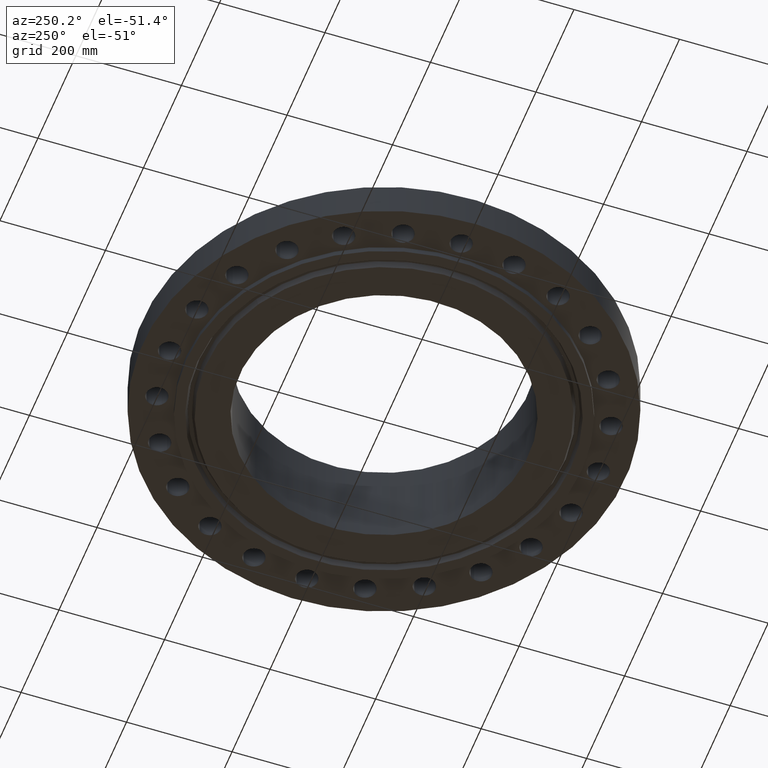
[diagram: clean part render]
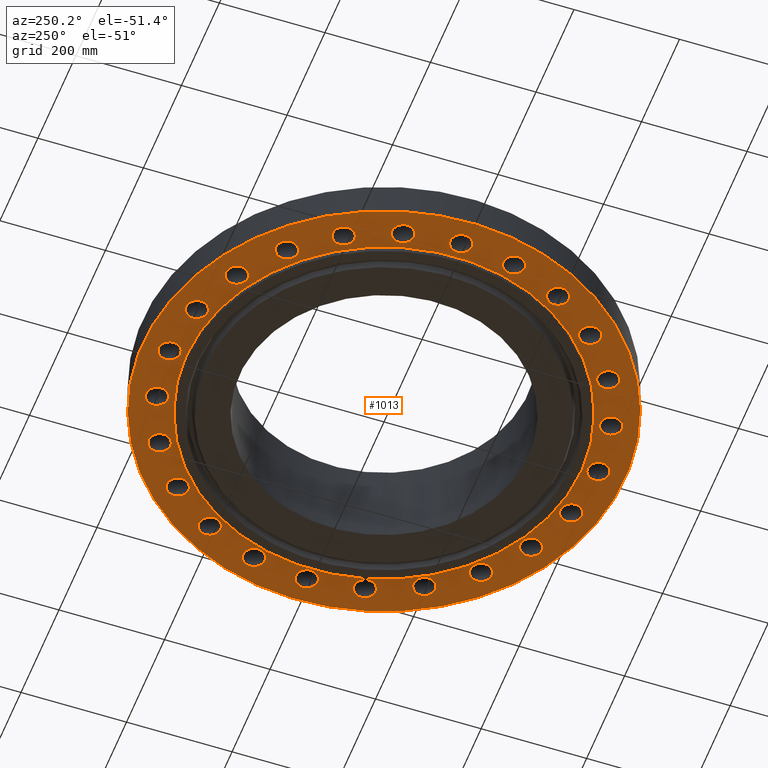
[diagram: same view with one face highlighted and labeled with its STEP entity id]
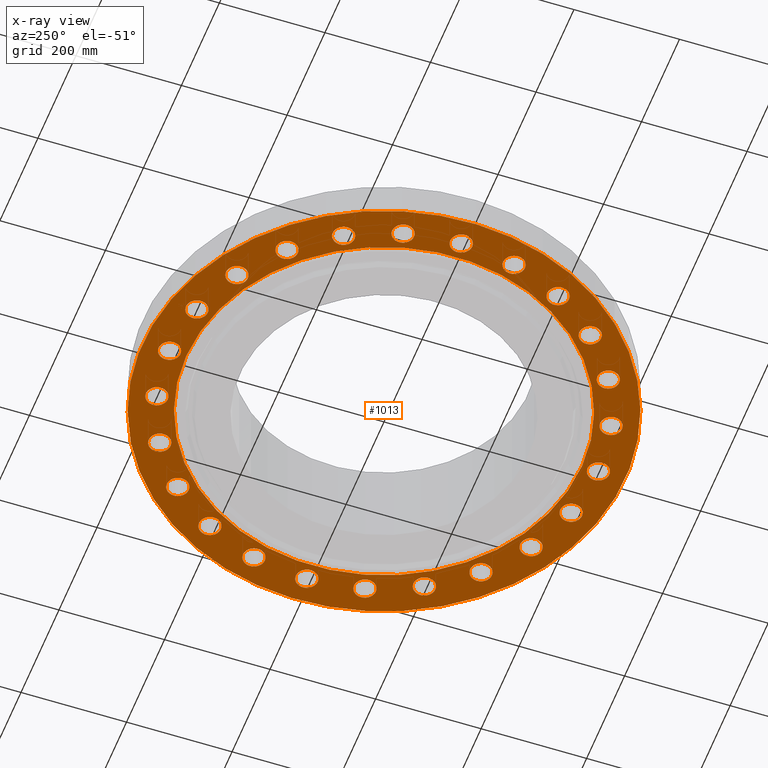
[diagram: x-ray of the same camera — body ghosted, the highlighted face saturated]
A machine part, auxiliary view. The second image highlights one B-rep face of the part: STEP entity #1013.
The next image is the same camera in x-ray: the body ghosted, the highlighted face saturated — about 0% of this face is hidden behind the body in this view.
In plain terms, the highlighted planar face has unit normal (0, 0, -1).
Its self-contained STEP definition (entity closure, byte-faithful):
#51=AXIS2_PLACEMENT_3D('Circle Axis2P3D',#49,#50,$) ;
#85=AXIS2_PLACEMENT_3D('Circle Axis2P3D',#83,#84,$) ;
#114=AXIS2_PLACEMENT_3D('Circle Axis2P3D',#112,#113,$) ;
#149=AXIS2_PLACEMENT_3D('Circle Axis2P3D',#147,#148,$) ;
#548=AXIS2_PLACEMENT_3D('Circle Axis2P3D',#546,#547,$) ;
#572=AXIS2_PLACEMENT_3D('Circle Axis2P3D',#570,#571,$) ;
#585=AXIS2_PLACEMENT_3D('Plane Axis2P3D',#582,#583,#584) ;
#601=AXIS2_PLACEMENT_3D('Circle Axis2P3D',#599,#600,$) ;
#610=AXIS2_PLACEMENT_3D('Circle Axis2P3D',#608,#609,$) ;
#619=AXIS2_PLACEMENT_3D('Circle Axis2P3D',#617,#618,$) ;
#628=AXIS2_PLACEMENT_3D('Circle Axis2P3D',#626,#627,$) ;
#637=AXIS2_PLACEMENT_3D('Circle Axis2P3D',#635,#636,$) ;
#646=AXIS2_PLACEMENT_3D('Circle Axis2P3D',#644,#645,$) ;
#655=AXIS2_PLACEMENT_3D('Circle Axis2P3D',#653,#654,$) ;
#664=AXIS2_PLACEMENT_3D('Circle Axis2P3D',#662,#663,$) ;
#673=AXIS2_PLACEMENT_3D('Circle Axis2P3D',#671,#672,$) ;
#682=AXIS2_PLACEMENT_3D('Circle Axis2P3D',#680,#681,$) ;
#691=AXIS2_PLACEMENT_3D('Circle Axis2P3D',#689,#690,$) ;
#700=AXIS2_PLACEMENT_3D('Circle Axis2P3D',#698,#699,$) ;
#709=AXIS2_PLACEMENT_3D('Circle Axis2P3D',#707,#708,$) ;
#718=AXIS2_PLACEMENT_3D('Circle Axis2P3D',#716,#717,$) ;
#727=AXIS2_PLACEMENT_3D('Circle Axis2P3D',#725,#726,$) ;
#736=AXIS2_PLACEMENT_3D('Circle Axis2P3D',#734,#735,$) ;
#745=AXIS2_PLACEMENT_3D('Circle Axis2P3D',#743,#744,$) ;
#754=AXIS2_PLACEMENT_3D('Circle Axis2P3D',#752,#753,$) ;
#763=AXIS2_PLACEMENT_3D('Circle Axis2P3D',#761,#762,$) ;
#772=AXIS2_PLACEMENT_3D('Circle Axis2P3D',#770,#771,$) ;
#781=AXIS2_PLACEMENT_3D('Circle Axis2P3D',#779,#780,$) ;
#790=AXIS2_PLACEMENT_3D('Circle Axis2P3D',#788,#789,$) ;
#799=AXIS2_PLACEMENT_3D('Circle Axis2P3D',#797,#798,$) ;
#808=AXIS2_PLACEMENT_3D('Circle Axis2P3D',#806,#807,$) ;
#817=AXIS2_PLACEMENT_3D('Circle Axis2P3D',#815,#816,$) ;
#826=AXIS2_PLACEMENT_3D('Circle Axis2P3D',#824,#825,$) ;
#835=AXIS2_PLACEMENT_3D('Circle Axis2P3D',#833,#834,$) ;
#844=AXIS2_PLACEMENT_3D('Circle Axis2P3D',#842,#843,$) ;
#853=AXIS2_PLACEMENT_3D('Circle Axis2P3D',#851,#852,$) ;
#862=AXIS2_PLACEMENT_3D('Circle Axis2P3D',#860,#861,$) ;
#871=AXIS2_PLACEMENT_3D('Circle Axis2P3D',#869,#870,$) ;
#880=AXIS2_PLACEMENT_3D('Circle Axis2P3D',#878,#879,$) ;
#889=AXIS2_PLACEMENT_3D('Circle Axis2P3D',#887,#888,$) ;
#898=AXIS2_PLACEMENT_3D('Circle Axis2P3D',#896,#897,$) ;
#907=AXIS2_PLACEMENT_3D('Circle Axis2P3D',#905,#906,$) ;
#916=AXIS2_PLACEMENT_3D('Circle Axis2P3D',#914,#915,$) ;
#925=AXIS2_PLACEMENT_3D('Circle Axis2P3D',#923,#924,$) ;
#934=AXIS2_PLACEMENT_3D('Circle Axis2P3D',#932,#933,$) ;
#943=AXIS2_PLACEMENT_3D('Circle Axis2P3D',#941,#942,$) ;
#952=AXIS2_PLACEMENT_3D('Circle Axis2P3D',#950,#951,$) ;
#961=AXIS2_PLACEMENT_3D('Circle Axis2P3D',#959,#960,$) ;
#970=AXIS2_PLACEMENT_3D('Circle Axis2P3D',#968,#969,$) ;
#979=AXIS2_PLACEMENT_3D('Circle Axis2P3D',#977,#978,$) ;
#988=AXIS2_PLACEMENT_3D('Circle Axis2P3D',#986,#987,$) ;
#997=AXIS2_PLACEMENT_3D('Circle Axis2P3D',#995,#996,$) ;
#1006=AXIS2_PLACEMENT_3D('Circle Axis2P3D',#1004,#1005,$) ;
#44=CARTESIAN_POINT('Vertex',(-0.715229787944,16.390731814,0.)) ;
#49=CARTESIAN_POINT('Axis2P3D Location',(0.,16.0000000001,0.)) ;
#53=CARTESIAN_POINT('Vertex',(0.715229787944,15.6092681861,0.)) ;
#83=CARTESIAN_POINT('Axis2P3D Location',(0.,16.0000000001,0.)) ;
#112=CARTESIAN_POINT('Axis2P3D Location',(0.,0.,2.23792987641E-015)) ;
#116=CARTESIAN_POINT('Vertex',(-8.62965969491,-15.7964861141,2.23792987641E-015)) ;
#118=CARTESIAN_POINT('Vertex',(8.62965969491,15.7964861141,2.23792987641E-015)) ;
#147=CARTESIAN_POINT('Axis2P3D Location',(0.,0.,2.23792987641E-015)) ;
#543=CARTESIAN_POINT('Vertex',(-7.07152669444,-12.9443427879,1.67844740731E-015)) ;
#546=CARTESIAN_POINT('Axis2P3D Location',(0.,0.,1.67844740731E-015)) ;
#550=CARTESIAN_POINT('Vertex',(7.07152669444,12.9443427879,1.67844740731E-015)) ;
#570=CARTESIAN_POINT('Axis2P3D Location',(0.,0.,1.67844740731E-015)) ;
#582=CARTESIAN_POINT('Axis2P3D Location',(0.,14.7500000001,0.)) ;
#599=CARTESIAN_POINT('Axis2P3D Location',(4.14110472166,15.4548132207,0.)) ;
#603=CARTESIAN_POINT('Vertex',(3.55137463273,16.0173462617,0.)) ;
#605=CARTESIAN_POINT('Vertex',(4.73083481058,14.8922801797,0.)) ;
#608=CARTESIAN_POINT('Axis2P3D Location',(4.14110472166,15.4548132207,0.)) ;
#617=CARTESIAN_POINT('Axis2P3D Location',(8.00000000003,13.8564064606,0.)) ;
#621=CARTESIAN_POINT('Vertex',(7.57595874111,14.5524050315,0.)) ;
#623=CARTESIAN_POINT('Vertex',(8.42404125895,13.1604078897,0.)) ;
#626=CARTESIAN_POINT('Axis2P3D Location',(8.00000000003,13.8564064606,0.)) ;
#635=CARTESIAN_POINT('Axis2P3D Location',(11.313708499,11.313708499,0.)) ;
#639=CARTESIAN_POINT('Vertex',(11.0842537811,12.0957414475,0.)) ;
#641=CARTESIAN_POINT('Vertex',(11.5431632169,10.5316755506,0.)) ;
#644=CARTESIAN_POINT('Axis2P3D Location',(11.313708499,11.313708499,0.)) ;
#653=CARTESIAN_POINT('Axis2P3D Location',(13.8564064606,8.00000000003,0.)) ;
#657=CARTESIAN_POINT('Vertex',(13.8371752436,8.81477307292,0.)) ;
#659=CARTESIAN_POINT('Vertex',(13.8756376776,7.18522692715,0.)) ;
#662=CARTESIAN_POINT('Axis2P3D Location',(13.8564064606,8.00000000003,0.)) ;
#671=CARTESIAN_POINT('Axis2P3D Location',(15.4548132207,4.14110472166,0.)) ;
#675=CARTESIAN_POINT('Vertex',(15.6471160802,4.93309248054,0.)) ;
#677=CARTESIAN_POINT('Vertex',(15.2625103612,3.34911696277,0.)) ;
#680=CARTESIAN_POINT('Axis2P3D Location',(15.4548132207,4.14110472166,0.)) ;
#689=CARTESIAN_POINT('Axis2P3D Location',(16.0000000001,2.23792987641E-015,0.)) ;
#693=CARTESIAN_POINT('Vertex',(16.390731814,0.715229787944,0.)) ;
#695=CARTESIAN_POINT('Vertex',(15.6092681861,-0.715229787944,0.)) ;
#698=CARTESIAN_POINT('Axis2P3D Location',(16.0000000001,2.23792987641E-015,0.)) ;
#707=CARTESIAN_POINT('Axis2P3D Location',(15.4548132207,-4.14110472166,0.)) ;
#711=CARTESIAN_POINT('Vertex',(16.0173462617,-3.55137463273,0.)) ;
#713=CARTESIAN_POINT('Vertex',(14.8922801797,-4.73083481058,-1.1189649382E-015)) ;
#716=CARTESIAN_POINT('Axis2P3D Location',(15.4548132207,-4.14110472166,0.)) ;
#725=CARTESIAN_POINT('Axis2P3D Location',(13.8564064606,-8.00000000003,0.)) ;
#729=CARTESIAN_POINT('Vertex',(14.5524050315,-7.57595874111,0.)) ;
#731=CARTESIAN_POINT('Vertex',(13.1604078897,-8.42404125895,-2.23792987641E-015)) ;
#734=CARTESIAN_POINT('Axis2P3D Location',(13.8564064606,-8.00000000003,0.)) ;
#743=CARTESIAN_POINT('Axis2P3D Location',(11.313708499,-11.313708499,0.)) ;
#747=CARTESIAN_POINT('Vertex',(12.0957414475,-11.0842537811,0.)) ;
#749=CARTESIAN_POINT('Vertex',(10.5316755506,-11.5431632169,0.)) ;
#752=CARTESIAN_POINT('Axis2P3D Location',(11.313708499,-11.313708499,0.)) ;
#761=CARTESIAN_POINT('Axis2P3D Location',(8.00000000003,-13.8564064606,0.)) ;
#765=CARTESIAN_POINT('Vertex',(8.81477307292,-13.8371752436,0.)) ;
#767=CARTESIAN_POINT('Vertex',(7.18522692715,-13.8756376776,0.)) ;
#770=CARTESIAN_POINT('Axis2P3D Location',(8.00000000003,-13.8564064606,0.)) ;
#779=CARTESIAN_POINT('Axis2P3D Location',(4.14110472166,-15.4548132207,0.)) ;
#783=CARTESIAN_POINT('Vertex',(4.93309248054,-15.6471160802,0.)) ;
#785=CARTESIAN_POINT('Vertex',(3.34911696277,-15.2625103612,0.)) ;
#788=CARTESIAN_POINT('Axis2P3D Location',(4.14110472166,-15.4548132207,0.)) ;
#797=CARTESIAN_POINT('Axis2P3D Location',(2.13302691345E-015,-16.0000000001,0.)) ;
#801=CARTESIAN_POINT('Vertex',(0.715229787944,-16.390731814,0.)) ;
#803=CARTESIAN_POINT('Vertex',(-0.715229787944,-15.6092681861,0.)) ;
#806=CARTESIAN_POINT('Axis2P3D Location',(1.78335037026E-015,-16.0000000001,0.)) ;
#815=CARTESIAN_POINT('Axis2P3D Location',(-4.14110472166,-15.4548132207,0.)) ;
#819=CARTESIAN_POINT('Vertex',(-3.55137463273,-16.0173462617,0.)) ;
#821=CARTESIAN_POINT('Vertex',(-4.73083481058,-14.8922801797,0.)) ;
#824=CARTESIAN_POINT('Axis2P3D Location',(-4.14110472166,-15.4548132207,0.)) ;
#833=CARTESIAN_POINT('Axis2P3D Location',(-8.00000000003,-13.8564064606,0.)) ;
#837=CARTESIAN_POINT('Vertex',(-7.57595874111,-14.5524050315,0.)) ;
#839=CARTESIAN_POINT('Vertex',(-8.42404125895,-13.1604078897,0.)) ;
#842=CARTESIAN_POINT('Axis2P3D Location',(-8.00000000003,-13.8564064606,0.)) ;
#851=CARTESIAN_POINT('Axis2P3D Location',(-11.313708499,-11.313708499,0.)) ;
#855=CARTESIAN_POINT('Vertex',(-11.0842537811,-12.0957414475,0.)) ;
#857=CARTESIAN_POINT('Vertex',(-11.5431632169,-10.5316755506,0.)) ;
#860=CARTESIAN_POINT('Axis2P3D Location',(-11.313708499,-11.313708499,0.)) ;
#869=CARTESIAN_POINT('Axis2P3D Location',(-13.8564064606,-8.00000000003,0.)) ;
#873=CARTESIAN_POINT('Vertex',(-13.8371752436,-8.81477307292,0.)) ;
#875=CARTESIAN_POINT('Vertex',(-13.8756376776,-7.18522692715,0.)) ;
#878=CARTESIAN_POINT('Axis2P3D Location',(-13.8564064606,-8.00000000003,0.)) ;
#887=CARTESIAN_POINT('Axis2P3D Location',(-15.4548132207,-4.14110472166,0.)) ;
#891=CARTESIAN_POINT('Vertex',(-15.6471160802,-4.93309248054,0.)) ;
#893=CARTESIAN_POINT('Vertex',(-15.2625103612,-3.34911696277,0.)) ;
#896=CARTESIAN_POINT('Axis2P3D Location',(-15.4548132207,-4.14110472166,0.)) ;
#905=CARTESIAN_POINT('Axis2P3D Location',(-16.0000000001,-2.23792987641E-015,0.)) ;
#909=CARTESIAN_POINT('Vertex',(-16.390731814,-0.715229787944,0.)) ;
#911=CARTESIAN_POINT('Vertex',(-15.6092681861,0.715229787944,0.)) ;
#914=CARTESIAN_POINT('Axis2P3D Location',(-16.0000000001,0.,0.)) ;
#923=CARTESIAN_POINT('Axis2P3D Location',(-15.4548132207,4.14110472166,0.)) ;
#927=CARTESIAN_POINT('Vertex',(-16.0173462617,3.55137463273,0.)) ;
#929=CARTESIAN_POINT('Vertex',(-14.8922801797,4.73083481058,0.)) ;
#932=CARTESIAN_POINT('Axis2P3D Location',(-15.4548132207,4.14110472166,0.)) ;
#941=CARTESIAN_POINT('Axis2P3D Location',(-13.8564064606,8.00000000003,0.)) ;
#945=CARTESIAN_POINT('Vertex',(-14.5524050315,7.57595874111,0.)) ;
#947=CARTESIAN_POINT('Vertex',(-13.1604078897,8.42404125895,0.)) ;
#950=CARTESIAN_POINT('Axis2P3D Location',(-13.8564064606,8.00000000003,0.)) ;
#959=CARTESIAN_POINT('Axis2P3D Location',(-11.313708499,11.313708499,0.)) ;
#963=CARTESIAN_POINT('Vertex',(-12.0957414475,11.0842537811,0.)) ;
#965=CARTESIAN_POINT('Vertex',(-10.5316755506,11.5431632169,0.)) ;
#968=CARTESIAN_POINT('Axis2P3D Location',(-11.313708499,11.313708499,0.)) ;
#977=CARTESIAN_POINT('Axis2P3D Location',(-8.00000000003,13.8564064606,0.)) ;
#981=CARTESIAN_POINT('Vertex',(-8.81477307292,13.8371752436,0.)) ;
#983=CARTESIAN_POINT('Vertex',(-7.18522692715,13.8756376776,0.)) ;
#986=CARTESIAN_POINT('Axis2P3D Location',(-8.00000000003,13.8564064606,0.)) ;
#995=CARTESIAN_POINT('Axis2P3D Location',(-4.14110472166,15.4548132207,0.)) ;
#999=CARTESIAN_POINT('Vertex',(-4.93309248054,15.6471160802,0.)) ;
#1001=CARTESIAN_POINT('Vertex',(-3.34911696277,15.2625103612,0.)) ;
#1004=CARTESIAN_POINT('Axis2P3D Location',(-4.14110472166,15.4548132207,0.)) ;
#50=DIRECTION('Axis2P3D Direction',(0.,-0.,-0.0393700787402)) ;
#84=DIRECTION('Axis2P3D Direction',(0.,-0.,-0.0393700787402)) ;
#113=DIRECTION('Axis2P3D Direction',(0.,0.,-0.0393700787402)) ;
#148=DIRECTION('Axis2P3D Direction',(0.,0.,-0.0393700787402)) ;
#547=DIRECTION('Axis2P3D Direction',(0.,0.,-0.0393700787402)) ;
#571=DIRECTION('Axis2P3D Direction',(0.,0.,-0.0393700787402)) ;
#583=DIRECTION('Axis2P3D Direction',(0.,0.,-0.0393700787402)) ;
#584=DIRECTION('Axis2P3D XDirection',(0.0393700787402,0.,0.)) ;
#600=DIRECTION('Axis2P3D Direction',(0.,0.,-0.0393700787402)) ;
#609=DIRECTION('Axis2P3D Direction',(0.,0.,-0.0393700787402)) ;
#618=DIRECTION('Axis2P3D Direction',(0.,0.,-0.0393700787402)) ;
#627=DIRECTION('Axis2P3D Direction',(0.,0.,-0.0393700787402)) ;
#636=DIRECTION('Axis2P3D Direction',(0.,0.,-0.0393700787402)) ;
#645=DIRECTION('Axis2P3D Direction',(0.,0.,-0.0393700787402)) ;
#654=DIRECTION('Axis2P3D Direction',(0.,0.,-0.0393700787402)) ;
#663=DIRECTION('Axis2P3D Direction',(0.,0.,-0.0393700787402)) ;
#672=DIRECTION('Axis2P3D Direction',(0.,0.,-0.0393700787402)) ;
#681=DIRECTION('Axis2P3D Direction',(0.,0.,-0.0393700787402)) ;
#690=DIRECTION('Axis2P3D Direction',(0.,0.,-0.0393700787402)) ;
#699=DIRECTION('Axis2P3D Direction',(0.,0.,-0.0393700787402)) ;
#708=DIRECTION('Axis2P3D Direction',(0.,0.,-0.0393700787402)) ;
#717=DIRECTION('Axis2P3D Direction',(0.,0.,-0.0393700787402)) ;
#726=DIRECTION('Axis2P3D Direction',(0.,0.,-0.0393700787402)) ;
#735=DIRECTION('Axis2P3D Direction',(0.,0.,-0.0393700787402)) ;
#744=DIRECTION('Axis2P3D Direction',(0.,0.,-0.0393700787402)) ;
#753=DIRECTION('Axis2P3D Direction',(0.,0.,-0.0393700787402)) ;
#762=DIRECTION('Axis2P3D Direction',(0.,0.,-0.0393700787402)) ;
#771=DIRECTION('Axis2P3D Direction',(0.,0.,-0.0393700787402)) ;
#780=DIRECTION('Axis2P3D Direction',(0.,0.,-0.0393700787402)) ;
#789=DIRECTION('Axis2P3D Direction',(0.,0.,-0.0393700787402)) ;
#798=DIRECTION('Axis2P3D Direction',(0.,0.,-0.0393700787402)) ;
#807=DIRECTION('Axis2P3D Direction',(0.,0.,-0.0393700787402)) ;
#816=DIRECTION('Axis2P3D Direction',(0.,0.,-0.0393700787402)) ;
#825=DIRECTION('Axis2P3D Direction',(0.,0.,-0.0393700787402)) ;
#834=DIRECTION('Axis2P3D Direction',(0.,0.,-0.0393700787402)) ;
#843=DIRECTION('Axis2P3D Direction',(0.,0.,-0.0393700787402)) ;
#852=DIRECTION('Axis2P3D Direction',(0.,0.,-0.0393700787402)) ;
#861=DIRECTION('Axis2P3D Direction',(0.,0.,-0.0393700787402)) ;
#870=DIRECTION('Axis2P3D Direction',(0.,0.,-0.0393700787402)) ;
#879=DIRECTION('Axis2P3D Direction',(0.,0.,-0.0393700787402)) ;
#888=DIRECTION('Axis2P3D Direction',(0.,0.,-0.0393700787402)) ;
#897=DIRECTION('Axis2P3D Direction',(0.,0.,-0.0393700787402)) ;
#906=DIRECTION('Axis2P3D Direction',(0.,0.,-0.0393700787402)) ;
#915=DIRECTION('Axis2P3D Direction',(0.,0.,-0.0393700787402)) ;
#924=DIRECTION('Axis2P3D Direction',(0.,0.,-0.0393700787402)) ;
#933=DIRECTION('Axis2P3D Direction',(0.,0.,-0.0393700787402)) ;
#942=DIRECTION('Axis2P3D Direction',(0.,0.,-0.0393700787402)) ;
#951=DIRECTION('Axis2P3D Direction',(0.,0.,-0.0393700787402)) ;
#960=DIRECTION('Axis2P3D Direction',(0.,0.,-0.0393700787402)) ;
#969=DIRECTION('Axis2P3D Direction',(0.,0.,-0.0393700787402)) ;
#978=DIRECTION('Axis2P3D Direction',(0.,0.,-0.0393700787402)) ;
#987=DIRECTION('Axis2P3D Direction',(0.,0.,-0.0393700787402)) ;
#996=DIRECTION('Axis2P3D Direction',(0.,0.,-0.0393700787402)) ;
#1005=DIRECTION('Axis2P3D Direction',(0.,0.,-0.0393700787402)) ;
#588=ORIENTED_EDGE('',*,*,#120,.T.) ;
#589=ORIENTED_EDGE('',*,*,#151,.T.) ;
#592=ORIENTED_EDGE('',*,*,#87,.F.) ;
#593=ORIENTED_EDGE('',*,*,#55,.F.) ;
#596=ORIENTED_EDGE('',*,*,#574,.F.) ;
#597=ORIENTED_EDGE('',*,*,#552,.F.) ;
#614=ORIENTED_EDGE('',*,*,#607,.F.) ;
#615=ORIENTED_EDGE('',*,*,#612,.F.) ;
#632=ORIENTED_EDGE('',*,*,#625,.F.) ;
#633=ORIENTED_EDGE('',*,*,#630,.F.) ;
#650=ORIENTED_EDGE('',*,*,#643,.F.) ;
#651=ORIENTED_EDGE('',*,*,#648,.F.) ;
#668=ORIENTED_EDGE('',*,*,#661,.F.) ;
#669=ORIENTED_EDGE('',*,*,#666,.F.) ;
#686=ORIENTED_EDGE('',*,*,#679,.F.) ;
#687=ORIENTED_EDGE('',*,*,#684,.F.) ;
#704=ORIENTED_EDGE('',*,*,#697,.F.) ;
#705=ORIENTED_EDGE('',*,*,#702,.F.) ;
#722=ORIENTED_EDGE('',*,*,#715,.F.) ;
#723=ORIENTED_EDGE('',*,*,#720,.F.) ;
#740=ORIENTED_EDGE('',*,*,#733,.F.) ;
#741=ORIENTED_EDGE('',*,*,#738,.F.) ;
#758=ORIENTED_EDGE('',*,*,#751,.F.) ;
#759=ORIENTED_EDGE('',*,*,#756,.F.) ;
#776=ORIENTED_EDGE('',*,*,#769,.F.) ;
#777=ORIENTED_EDGE('',*,*,#774,.F.) ;
#794=ORIENTED_EDGE('',*,*,#787,.F.) ;
#795=ORIENTED_EDGE('',*,*,#792,.F.) ;
#812=ORIENTED_EDGE('',*,*,#805,.F.) ;
#813=ORIENTED_EDGE('',*,*,#810,.F.) ;
#830=ORIENTED_EDGE('',*,*,#823,.F.) ;
#831=ORIENTED_EDGE('',*,*,#828,.F.) ;
#848=ORIENTED_EDGE('',*,*,#841,.F.) ;
#849=ORIENTED_EDGE('',*,*,#846,.F.) ;
#866=ORIENTED_EDGE('',*,*,#859,.F.) ;
#867=ORIENTED_EDGE('',*,*,#864,.F.) ;
#884=ORIENTED_EDGE('',*,*,#877,.F.) ;
#885=ORIENTED_EDGE('',*,*,#882,.F.) ;
#902=ORIENTED_EDGE('',*,*,#895,.F.) ;
#903=ORIENTED_EDGE('',*,*,#900,.F.) ;
#920=ORIENTED_EDGE('',*,*,#913,.F.) ;
#921=ORIENTED_EDGE('',*,*,#918,.F.) ;
#938=ORIENTED_EDGE('',*,*,#931,.F.) ;
#939=ORIENTED_EDGE('',*,*,#936,.F.) ;
#956=ORIENTED_EDGE('',*,*,#949,.F.) ;
#957=ORIENTED_EDGE('',*,*,#954,.F.) ;
#974=ORIENTED_EDGE('',*,*,#967,.F.) ;
#975=ORIENTED_EDGE('',*,*,#972,.F.) ;
#992=ORIENTED_EDGE('',*,*,#985,.F.) ;
#993=ORIENTED_EDGE('',*,*,#990,.F.) ;
#1010=ORIENTED_EDGE('',*,*,#1003,.F.) ;
#1011=ORIENTED_EDGE('',*,*,#1008,.F.) ;
#594=FACE_BOUND('',#591,.T.) ;
#598=FACE_BOUND('',#595,.T.) ;
#616=FACE_BOUND('',#613,.T.) ;
#634=FACE_BOUND('',#631,.T.) ;
#652=FACE_BOUND('',#649,.T.) ;
#670=FACE_BOUND('',#667,.T.) ;
#688=FACE_BOUND('',#685,.T.) ;
#706=FACE_BOUND('',#703,.T.) ;
#724=FACE_BOUND('',#721,.T.) ;
#742=FACE_BOUND('',#739,.T.) ;
#760=FACE_BOUND('',#757,.T.) ;
#778=FACE_BOUND('',#775,.T.) ;
#796=FACE_BOUND('',#793,.T.) ;
#814=FACE_BOUND('',#811,.T.) ;
#832=FACE_BOUND('',#829,.T.) ;
#850=FACE_BOUND('',#847,.T.) ;
#868=FACE_BOUND('',#865,.T.) ;
#886=FACE_BOUND('',#883,.T.) ;
#904=FACE_BOUND('',#901,.T.) ;
#922=FACE_BOUND('',#919,.T.) ;
#940=FACE_BOUND('',#937,.T.) ;
#958=FACE_BOUND('',#955,.T.) ;
#976=FACE_BOUND('',#973,.T.) ;
#994=FACE_BOUND('',#991,.T.) ;
#1012=FACE_BOUND('',#1009,.T.) ;
#1013=ADVANCED_FACE('PartBody',(#590,#594,#598,#616,#634,#652,#670,#688,#706,#724,#742,#760,#778,#796,#814,#832,#850,#868,#886,#904,#922,#940,#958,#976,#994,#1012),#586,.T.) ;
#52=CIRCLE('generated circle',#51,0.815000000003) ;
#86=CIRCLE('generated circle',#85,0.815000000003) ;
#115=CIRCLE('generated circle',#114,18.0000000001) ;
#150=CIRCLE('generated circle',#149,18.0000000001) ;
#549=CIRCLE('generated circle',#548,14.7500000001) ;
#573=CIRCLE('generated circle',#572,14.7500000001) ;
#602=CIRCLE('generated circle',#601,0.815000000003) ;
#611=CIRCLE('generated circle',#610,0.815000000003) ;
#620=CIRCLE('generated circle',#619,0.815000000003) ;
#629=CIRCLE('generated circle',#628,0.815000000003) ;
#638=CIRCLE('generated circle',#637,0.815000000003) ;
#647=CIRCLE('generated circle',#646,0.815000000003) ;
#656=CIRCLE('generated circle',#655,0.815000000003) ;
#665=CIRCLE('generated circle',#664,0.815000000003) ;
#674=CIRCLE('generated circle',#673,0.815000000003) ;
#683=CIRCLE('generated circle',#682,0.815000000003) ;
#692=CIRCLE('generated circle',#691,0.815000000003) ;
#701=CIRCLE('generated circle',#700,0.815000000003) ;
#710=CIRCLE('generated circle',#709,0.815000000003) ;
#719=CIRCLE('generated circle',#718,0.815000000003) ;
#728=CIRCLE('generated circle',#727,0.815000000003) ;
#737=CIRCLE('generated circle',#736,0.815000000003) ;
#746=CIRCLE('generated circle',#745,0.815000000003) ;
#755=CIRCLE('generated circle',#754,0.815000000003) ;
#764=CIRCLE('generated circle',#763,0.815000000003) ;
#773=CIRCLE('generated circle',#772,0.815000000003) ;
#782=CIRCLE('generated circle',#781,0.815000000003) ;
#791=CIRCLE('generated circle',#790,0.815000000003) ;
#800=CIRCLE('generated circle',#799,0.815000000003) ;
#809=CIRCLE('generated circle',#808,0.815000000003) ;
#818=CIRCLE('generated circle',#817,0.815000000003) ;
#827=CIRCLE('generated circle',#826,0.815000000003) ;
#836=CIRCLE('generated circle',#835,0.815000000003) ;
#845=CIRCLE('generated circle',#844,0.815000000003) ;
#854=CIRCLE('generated circle',#853,0.815000000003) ;
#863=CIRCLE('generated circle',#862,0.815000000003) ;
#872=CIRCLE('generated circle',#871,0.815000000003) ;
#881=CIRCLE('generated circle',#880,0.815000000003) ;
#890=CIRCLE('generated circle',#889,0.815000000003) ;
#899=CIRCLE('generated circle',#898,0.815000000003) ;
#908=CIRCLE('generated circle',#907,0.815000000003) ;
#917=CIRCLE('generated circle',#916,0.815000000003) ;
#926=CIRCLE('generated circle',#925,0.815000000003) ;
#935=CIRCLE('generated circle',#934,0.815000000003) ;
#944=CIRCLE('generated circle',#943,0.815000000003) ;
#953=CIRCLE('generated circle',#952,0.815000000003) ;
#962=CIRCLE('generated circle',#961,0.815000000003) ;
#971=CIRCLE('generated circle',#970,0.815000000003) ;
#980=CIRCLE('generated circle',#979,0.815000000003) ;
#989=CIRCLE('generated circle',#988,0.815000000003) ;
#998=CIRCLE('generated circle',#997,0.815000000003) ;
#1007=CIRCLE('generated circle',#1006,0.815000000003) ;
#55=EDGE_CURVE('',#45,#54,#52,.T.) ;
#87=EDGE_CURVE('',#54,#45,#86,.T.) ;
#120=EDGE_CURVE('',#117,#119,#115,.T.) ;
#151=EDGE_CURVE('',#119,#117,#150,.T.) ;
#552=EDGE_CURVE('',#544,#551,#549,.T.) ;
#574=EDGE_CURVE('',#551,#544,#573,.T.) ;
#607=EDGE_CURVE('',#604,#606,#602,.T.) ;
#612=EDGE_CURVE('',#606,#604,#611,.T.) ;
#625=EDGE_CURVE('',#622,#624,#620,.T.) ;
#630=EDGE_CURVE('',#624,#622,#629,.T.) ;
#643=EDGE_CURVE('',#640,#642,#638,.T.) ;
#648=EDGE_CURVE('',#642,#640,#647,.T.) ;
#661=EDGE_CURVE('',#658,#660,#656,.T.) ;
#666=EDGE_CURVE('',#660,#658,#665,.T.) ;
#679=EDGE_CURVE('',#676,#678,#674,.T.) ;
#684=EDGE_CURVE('',#678,#676,#683,.T.) ;
#697=EDGE_CURVE('',#694,#696,#692,.T.) ;
#702=EDGE_CURVE('',#696,#694,#701,.T.) ;
#715=EDGE_CURVE('',#712,#714,#710,.T.) ;
#720=EDGE_CURVE('',#714,#712,#719,.T.) ;
#733=EDGE_CURVE('',#730,#732,#728,.T.) ;
#738=EDGE_CURVE('',#732,#730,#737,.T.) ;
#751=EDGE_CURVE('',#748,#750,#746,.T.) ;
#756=EDGE_CURVE('',#750,#748,#755,.T.) ;
#769=EDGE_CURVE('',#766,#768,#764,.T.) ;
#774=EDGE_CURVE('',#768,#766,#773,.T.) ;
#787=EDGE_CURVE('',#784,#786,#782,.T.) ;
#792=EDGE_CURVE('',#786,#784,#791,.T.) ;
#805=EDGE_CURVE('',#802,#804,#800,.T.) ;
#810=EDGE_CURVE('',#804,#802,#809,.T.) ;
#823=EDGE_CURVE('',#820,#822,#818,.T.) ;
#828=EDGE_CURVE('',#822,#820,#827,.T.) ;
#841=EDGE_CURVE('',#838,#840,#836,.T.) ;
#846=EDGE_CURVE('',#840,#838,#845,.T.) ;
#859=EDGE_CURVE('',#856,#858,#854,.T.) ;
#864=EDGE_CURVE('',#858,#856,#863,.T.) ;
#877=EDGE_CURVE('',#874,#876,#872,.T.) ;
#882=EDGE_CURVE('',#876,#874,#881,.T.) ;
#895=EDGE_CURVE('',#892,#894,#890,.T.) ;
#900=EDGE_CURVE('',#894,#892,#899,.T.) ;
#913=EDGE_CURVE('',#910,#912,#908,.T.) ;
#918=EDGE_CURVE('',#912,#910,#917,.T.) ;
#931=EDGE_CURVE('',#928,#930,#926,.T.) ;
#936=EDGE_CURVE('',#930,#928,#935,.T.) ;
#949=EDGE_CURVE('',#946,#948,#944,.T.) ;
#954=EDGE_CURVE('',#948,#946,#953,.T.) ;
#967=EDGE_CURVE('',#964,#966,#962,.T.) ;
#972=EDGE_CURVE('',#966,#964,#971,.T.) ;
#985=EDGE_CURVE('',#982,#984,#980,.T.) ;
#990=EDGE_CURVE('',#984,#982,#989,.T.) ;
#1003=EDGE_CURVE('',#1000,#1002,#998,.T.) ;
#1008=EDGE_CURVE('',#1002,#1000,#1007,.T.) ;
#587=EDGE_LOOP('',(#588,#589)) ;
#591=EDGE_LOOP('',(#592,#593)) ;
#595=EDGE_LOOP('',(#596,#597)) ;
#613=EDGE_LOOP('',(#614,#615)) ;
#631=EDGE_LOOP('',(#632,#633)) ;
#649=EDGE_LOOP('',(#650,#651)) ;
#667=EDGE_LOOP('',(#668,#669)) ;
#685=EDGE_LOOP('',(#686,#687)) ;
#703=EDGE_LOOP('',(#704,#705)) ;
#721=EDGE_LOOP('',(#722,#723)) ;
#739=EDGE_LOOP('',(#740,#741)) ;
#757=EDGE_LOOP('',(#758,#759)) ;
#775=EDGE_LOOP('',(#776,#777)) ;
#793=EDGE_LOOP('',(#794,#795)) ;
#811=EDGE_LOOP('',(#812,#813)) ;
#829=EDGE_LOOP('',(#830,#831)) ;
#847=EDGE_LOOP('',(#848,#849)) ;
#865=EDGE_LOOP('',(#866,#867)) ;
#883=EDGE_LOOP('',(#884,#885)) ;
#901=EDGE_LOOP('',(#902,#903)) ;
#919=EDGE_LOOP('',(#920,#921)) ;
#937=EDGE_LOOP('',(#938,#939)) ;
#955=EDGE_LOOP('',(#956,#957)) ;
#973=EDGE_LOOP('',(#974,#975)) ;
#991=EDGE_LOOP('',(#992,#993)) ;
#1009=EDGE_LOOP('',(#1010,#1011)) ;
#590=FACE_OUTER_BOUND('',#587,.T.) ;
#586=PLANE('',#585) ;
#45=VERTEX_POINT('',#44) ;
#54=VERTEX_POINT('',#53) ;
#117=VERTEX_POINT('',#116) ;
#119=VERTEX_POINT('',#118) ;
#544=VERTEX_POINT('',#543) ;
#551=VERTEX_POINT('',#550) ;
#604=VERTEX_POINT('',#603) ;
#606=VERTEX_POINT('',#605) ;
#622=VERTEX_POINT('',#621) ;
#624=VERTEX_POINT('',#623) ;
#640=VERTEX_POINT('',#639) ;
#642=VERTEX_POINT('',#641) ;
#658=VERTEX_POINT('',#657) ;
#660=VERTEX_POINT('',#659) ;
#676=VERTEX_POINT('',#675) ;
#678=VERTEX_POINT('',#677) ;
#694=VERTEX_POINT('',#693) ;
#696=VERTEX_POINT('',#695) ;
#712=VERTEX_POINT('',#711) ;
#714=VERTEX_POINT('',#713) ;
#730=VERTEX_POINT('',#729) ;
#732=VERTEX_POINT('',#731) ;
#748=VERTEX_POINT('',#747) ;
#750=VERTEX_POINT('',#749) ;
#766=VERTEX_POINT('',#765) ;
#768=VERTEX_POINT('',#767) ;
#784=VERTEX_POINT('',#783) ;
#786=VERTEX_POINT('',#785) ;
#802=VERTEX_POINT('',#801) ;
#804=VERTEX_POINT('',#803) ;
#820=VERTEX_POINT('',#819) ;
#822=VERTEX_POINT('',#821) ;
#838=VERTEX_POINT('',#837) ;
#840=VERTEX_POINT('',#839) ;
#856=VERTEX_POINT('',#855) ;
#858=VERTEX_POINT('',#857) ;
#874=VERTEX_POINT('',#873) ;
#876=VERTEX_POINT('',#875) ;
#892=VERTEX_POINT('',#891) ;
#894=VERTEX_POINT('',#893) ;
#910=VERTEX_POINT('',#909) ;
#912=VERTEX_POINT('',#911) ;
#928=VERTEX_POINT('',#927) ;
#930=VERTEX_POINT('',#929) ;
#946=VERTEX_POINT('',#945) ;
#948=VERTEX_POINT('',#947) ;
#964=VERTEX_POINT('',#963) ;
#966=VERTEX_POINT('',#965) ;
#982=VERTEX_POINT('',#981) ;
#984=VERTEX_POINT('',#983) ;
#1000=VERTEX_POINT('',#999) ;
#1002=VERTEX_POINT('',#1001) ;